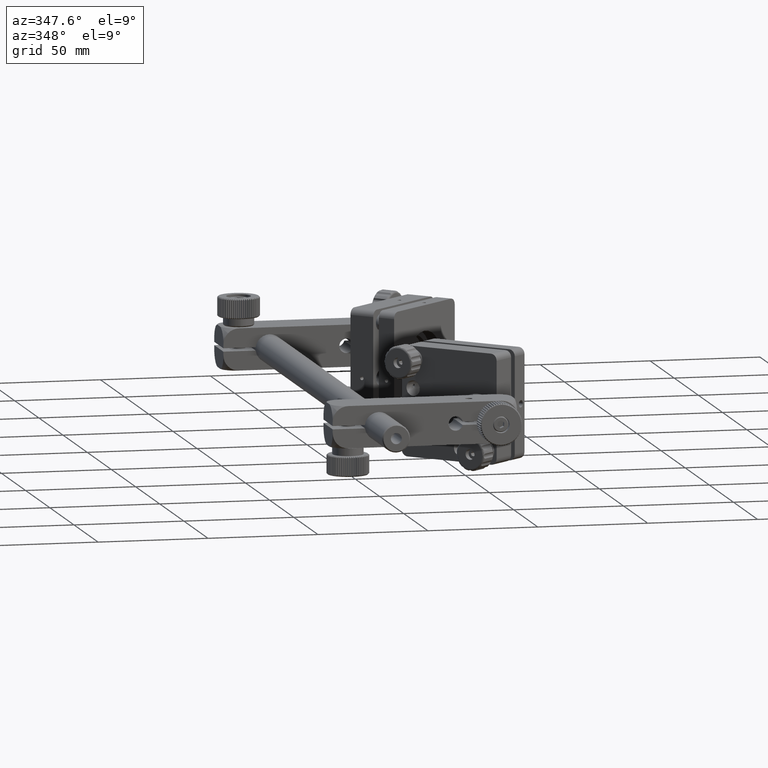
[diagram: clean part render]
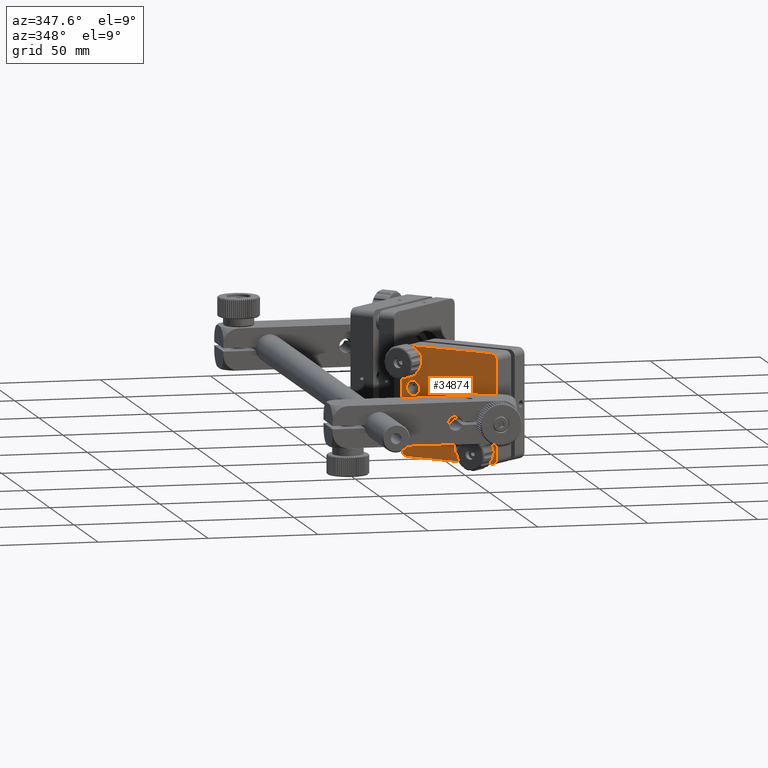
[diagram: same view with one face highlighted and labeled with its STEP entity id]
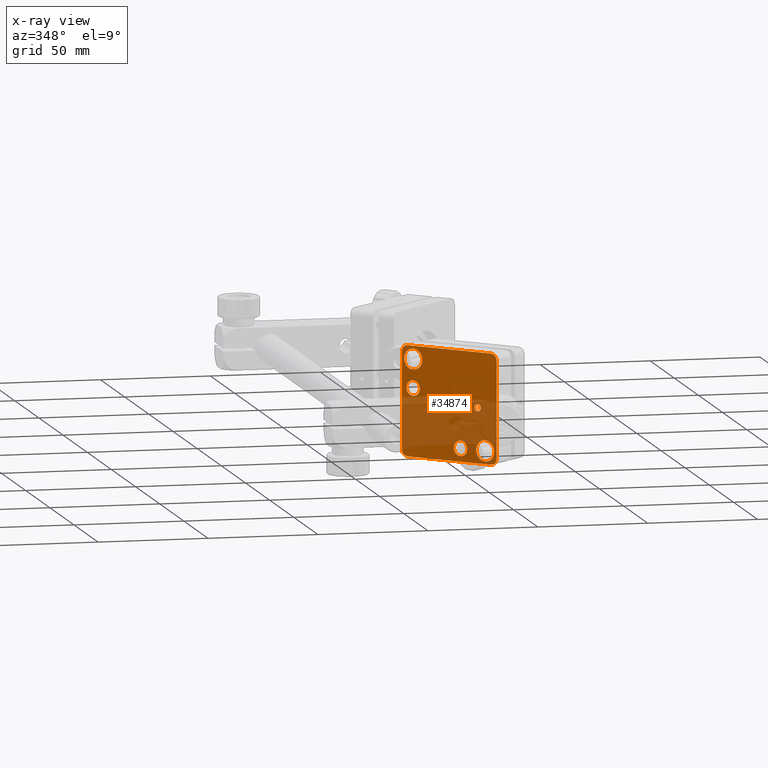
[diagram: x-ray of the same camera — body ghosted, the highlighted face saturated]
A machine part, auxiliary view. The second image highlights one B-rep face of the part: STEP entity #34874.
The next image is the same camera in x-ray: the body ghosted, the highlighted face saturated — about 44% of this face is hidden behind the body in this view.
In plain terms, the highlighted planar face has unit normal (0.7071, 0.7071, -0).
Its self-contained STEP definition (entity closure, byte-faithful):
#372 = VERTEX_POINT ( 'NONE', #57806 ) ;
#691 = VERTEX_POINT ( 'NONE', #31859 ) ;
#729 = CARTESIAN_POINT ( 'NONE',  ( 43.37591703623297690, 103.2506160743387653, 1.756373437918981856E-13 ) ) ;
#762 = EDGE_CURVE ( 'NONE', #51988, #5252, #11780, .T. ) ;
#1113 = DIRECTION ( 'NONE',  ( 0.000000000000000000, 0.000000000000000000, 1.000000000000000000 ) ) ;
#1262 = AXIS2_PLACEMENT_3D ( 'NONE', #11437, #36696, #2818 ) ;
#2506 = CARTESIAN_POINT ( 'NONE',  ( 27.81956785012891586, 118.8069652604426807, 25.00000000000015987 ) ) ;
#2816 = AXIS2_PLACEMENT_3D ( 'NONE', #5591, #10976, #44562 ) ;
#2818 = DIRECTION ( 'NONE',  ( 0.000000000000000000, 0.000000000000000000, 1.000000000000000000 ) ) ;
#2948 = EDGE_LOOP ( 'NONE', ( #48872, #61973 ) ) ;
#3379 = CIRCLE ( 'NONE', #48258, 3.499999999999999556 ) ;
#3577 = DIRECTION ( 'NONE',  ( 0.7071067811865445751, 0.7071067811865505703, 6.511551331494239254E-16 ) ) ;
#4462 = ORIENTED_EDGE ( 'NONE', *, *, #24935, .T. ) ;
#4800 = LINE ( 'NONE', #29394, #58939 ) ;
#4923 = EDGE_CURVE ( 'NONE', #51199, #13786, #41170, .T. ) ;
#5252 = VERTEX_POINT ( 'NONE', #16152 ) ;
#5591 = CARTESIAN_POINT ( 'NONE',  ( 58.93226622233719070, 87.69426688823480731, 22.00000000000018474 ) ) ;
#6485 = CARTESIAN_POINT ( 'NONE',  ( 53.98251875403126121, 92.64401435654050943, 1.876241934656472837E-13 ) ) ;
#6856 = FACE_BOUND ( 'NONE', #54916, .T. ) ;
#7096 = CARTESIAN_POINT ( 'NONE',  ( 29.94088819368845833, 116.6856449168830636, 6.000000000000161648 ) ) ;
#7137 = EDGE_CURVE ( 'NONE', #13786, #50115, #23476, .T. ) ;
#7200 = AXIS2_PLACEMENT_3D ( 'NONE', #729, #28874, #18969 ) ;
#7401 = DIRECTION ( 'NONE',  ( 0.7071067811865445751, 0.7071067811865505703, 6.511551331494239254E-16 ) ) ;
#7916 = CARTESIAN_POINT ( 'NONE',  ( 47.61855772335226789, 99.00797538721943170, -18.99999999999982236 ) ) ;
#9214 = CARTESIAN_POINT ( 'NONE',  ( 29.94088819368845833, 116.6856449168830636, 6.000000000000161648 ) ) ;
#9292 = DIRECTION ( 'NONE',  ( 7.304098846218133681E-16, 0.000000000000000000, 1.000000000000000000 ) ) ;
#9453 = EDGE_CURVE ( 'NONE', #40018, #54127, #62715, .T. ) ;
#9516 = CARTESIAN_POINT ( 'NONE',  ( 53.98251875403119016, 92.64401435654058048, -1.649999999999805178 ) ) ;
#10415 = VERTEX_POINT ( 'NONE', #56983 ) ;
#10585 = LINE ( 'NONE', #44482, #57535 ) ;
#10780 = DIRECTION ( 'NONE',  ( 0.7071067811865445751, 0.7071067811865505703, -5.218130153320595027E-16 ) ) ;
#10976 = DIRECTION ( 'NONE',  ( 0.7071067811865445751, 0.7071067811865505703, 6.511551331494239254E-16 ) ) ;
#11437 = CARTESIAN_POINT ( 'NONE',  ( 47.61855772335226789, 99.00797538721943170, -18.99999999999982236 ) ) ;
#11780 = CIRCLE ( 'NONE', #36315, 4.750000000000000888 ) ;
#11809 = EDGE_CURVE ( 'NONE', #14694, #61980, #59770, .T. ) ;
#11920 = AXIS2_PLACEMENT_3D ( 'NONE', #57611, #23724, #38140 ) ;
#12487 = DIRECTION ( 'NONE',  ( 0.7071067811865445751, 0.7071067811865505703, 6.511551331494239254E-16 ) ) ;
#12830 = ORIENTED_EDGE ( 'NONE', *, *, #26035, .F. ) ;
#13062 = EDGE_LOOP ( 'NONE', ( #51958, #4462 ) ) ;
#13562 = ORIENTED_EDGE ( 'NONE', *, *, #34810, .F. ) ;
#13641 = FACE_BOUND ( 'NONE', #13062, .T. ) ;
#13786 = VERTEX_POINT ( 'NONE', #14057 ) ;
#14018 = CIRCLE ( 'NONE', #21200, 2.999999999999999112 ) ;
#14057 = CARTESIAN_POINT ( 'NONE',  ( 25.69824750656920287, 120.9282856040023404, 22.00000000000015277 ) ) ;
#14373 = CARTESIAN_POINT ( 'NONE',  ( 53.98251875403119016, 92.64401435654058048, 1.650000000000180433 ) ) ;
#14382 = DIRECTION ( 'NONE',  ( 0.000000000000000000, 0.000000000000000000, 1.000000000000000000 ) ) ;
#14694 = VERTEX_POINT ( 'NONE', #14373 ) ;
#15602 = ORIENTED_EDGE ( 'NONE', *, *, #46555, .F. ) ;
#16152 = CARTESIAN_POINT ( 'NONE',  ( 29.94088819368845833, 116.6856449168830494, 23.75000000000017408 ) ) ;
#16316 = ORIENTED_EDGE ( 'NONE', *, *, #27221, .F. ) ;
#16377 = DIRECTION ( 'NONE',  ( 0.000000000000000000, 0.000000000000000000, 1.000000000000000000 ) ) ;
#16870 = ORIENTED_EDGE ( 'NONE', *, *, #53937, .T. ) ;
#17207 = VERTEX_POINT ( 'NONE', #19820 ) ;
#17277 = ORIENTED_EDGE ( 'NONE', *, *, #762, .T. ) ;
#17333 = DIRECTION ( 'NONE',  ( 9.912705577010326536E-16, 0.000000000000000000, 1.000000000000000000 ) ) ;
#17533 = CARTESIAN_POINT ( 'NONE',  ( 47.61855772335226789, 99.00797538721943170, -15.49999999999982236 ) ) ;
#17580 = CIRCLE ( 'NONE', #1262, 3.499999999999999556 ) ;
#17620 = CARTESIAN_POINT ( 'NONE',  ( 56.81094587877749547, 89.81558723179442438, -14.24999999999981171 ) ) ;
#17798 = EDGE_CURVE ( 'NONE', #40656, #10415, #26576, .T. ) ;
#18898 = DIRECTION ( 'NONE',  ( 0.7071067811865445751, 0.7071067811865505703, 6.511551331494239254E-16 ) ) ;
#18969 = DIRECTION ( 'NONE',  ( 0.000000000000000000, 0.000000000000000000, 1.000000000000000000 ) ) ;
#19658 = AXIS2_PLACEMENT_3D ( 'NONE', #6485, #55671, #16377 ) ;
#19820 = CARTESIAN_POINT ( 'NONE',  ( 43.37591703623297690, 103.2506160743387653, -2.749999999999824141 ) ) ;
#20286 = CARTESIAN_POINT ( 'NONE',  ( 27.81956785012882349, 118.8069652604426949, -21.99999999999985079 ) ) ;
#21200 = AXIS2_PLACEMENT_3D ( 'NONE', #20286, #55071, #1113 ) ;
#21228 = EDGE_CURVE ( 'NONE', #62844, #26614, #48936, .T. ) ;
#21279 = ORIENTED_EDGE ( 'NONE', *, *, #32422, .T. ) ;
#22130 = EDGE_LOOP ( 'NONE', ( #39791, #21279 ) ) ;
#23012 = AXIS2_PLACEMENT_3D ( 'NONE', #23054, #12487, #57570 ) ;
#23054 = CARTESIAN_POINT ( 'NONE',  ( 53.98251875403126121, 92.64401435654050943, 1.876241934656472837E-13 ) ) ;
#23064 = ORIENTED_EDGE ( 'NONE', *, *, #4923, .F. ) ;
#23237 = CIRCLE ( 'NONE', #2816, 2.999999999999999112 ) ;
#23476 = CIRCLE ( 'NONE', #43890, 2.999999999999999112 ) ;
#23724 = DIRECTION ( 'NONE',  ( 0.7071067811865445751, 0.7071067811865505703, 6.511551331494239254E-16 ) ) ;
#23967 = DIRECTION ( 'NONE',  ( 0.000000000000000000, 0.000000000000000000, -1.000000000000000000 ) ) ;
#24428 = ORIENTED_EDGE ( 'NONE', *, *, #40541, .T. ) ;
#24550 = FACE_BOUND ( 'NONE', #41654, .T. ) ;
#24631 = CARTESIAN_POINT ( 'NONE',  ( 27.81956785012891942, 118.8069652604426807, 22.00000000000016342 ) ) ;
#24935 = EDGE_CURVE ( 'NONE', #61980, #14694, #61499, .T. ) ;
#26035 = EDGE_CURVE ( 'NONE', #30741, #40656, #47358, .T. ) ;
#26576 = LINE ( 'NONE', #46047, #50495 ) ;
#26586 = DIRECTION ( 'NONE',  ( 0.7071067811865445751, 0.7071067811865505703, 6.511551331494239254E-16 ) ) ;
#26614 = VERTEX_POINT ( 'NONE', #17533 ) ;
#27028 = CIRCLE ( 'NONE', #35223, 4.750000000000007994 ) ;
#27221 = EDGE_CURVE ( 'NONE', #50115, #372, #10585, .T. ) ;
#27436 = DIRECTION ( 'NONE',  ( 0.7071067811865445751, 0.7071067811865505703, 6.511551331494239254E-16 ) ) ;
#27954 = AXIS2_PLACEMENT_3D ( 'NONE', #31373, #26586, #51786 ) ;
#28217 = ORIENTED_EDGE ( 'NONE', *, *, #7137, .F. ) ;
#28774 = CARTESIAN_POINT ( 'NONE',  ( 56.81094587877749547, 89.81558723179442438, -18.99999999999981881 ) ) ;
#28874 = DIRECTION ( 'NONE',  ( 0.7071067811865445751, 0.7071067811865505703, 6.511551331494239254E-16 ) ) ;
#29068 = DIRECTION ( 'NONE',  ( 0.7071067811865445751, 0.7071067811865505703, 6.511551331494239254E-16 ) ) ;
#29349 = FACE_BOUND ( 'NONE', #2948, .T. ) ;
#29365 = AXIS2_PLACEMENT_3D ( 'NONE', #54557, #10780, #59374 ) ;
#29394 = CARTESIAN_POINT ( 'NONE',  ( 61.05358656589672961, 85.57294654467511918, -21.99999999999979750 ) ) ;
#29430 = CARTESIAN_POINT ( 'NONE',  ( 56.81094587877749547, 89.81558723179442438, -23.74999999999982592 ) ) ;
#29532 = EDGE_CURVE ( 'NONE', #691, #17207, #49748, .T. ) ;
#30401 = CARTESIAN_POINT ( 'NONE',  ( 47.61855772335226789, 99.00797538721943170, -22.49999999999982236 ) ) ;
#30741 = VERTEX_POINT ( 'NONE', #60825 ) ;
#31373 = CARTESIAN_POINT ( 'NONE',  ( 58.93226622233714806, 87.69426688823475047, -21.99999999999981881 ) ) ;
#31859 = CARTESIAN_POINT ( 'NONE',  ( 43.37591703623297690, 103.2506160743387653, 2.750000000000175415 ) ) ;
#31869 = CARTESIAN_POINT ( 'NONE',  ( 25.69824750656914958, 120.9282856040023546, -21.99999999999981881 ) ) ;
#32422 = EDGE_CURVE ( 'NONE', #56516, #61556, #37701, .T. ) ;
#33169 = FACE_BOUND ( 'NONE', #22130, .T. ) ;
#33808 = VERTEX_POINT ( 'NONE', #59275 ) ;
#33885 = DIRECTION ( 'NONE',  ( -4.468234455873618704E-16, -2.911315977180368823E-16, -1.000000000000000000 ) ) ;
#34057 = CARTESIAN_POINT ( 'NONE',  ( 29.94088819368845833, 116.6856449168830636, 2.500000000000161648 ) ) ;
#34643 = EDGE_LOOP ( 'NONE', ( #12830, #13562, #15602, #16316, #28217, #23064, #60561, #59976 ) ) ;
#34810 = EDGE_CURVE ( 'NONE', #33808, #30741, #4800, .T. ) ;
#34874 = ADVANCED_FACE ( 'NONE', ( #13641, #33169, #24550, #39905, #6856, #29349, #50630 ), #39581, .F. ) ;
#35128 = AXIS2_PLACEMENT_3D ( 'NONE', #47956, #3577, #9292 ) ;
#35223 = AXIS2_PLACEMENT_3D ( 'NONE', #48259, #18898, #57870 ) ;
#36315 = AXIS2_PLACEMENT_3D ( 'NONE', #57401, #44534, #52266 ) ;
#36696 = DIRECTION ( 'NONE',  ( 0.7071067811865445751, 0.7071067811865505703, 6.511551331494239254E-16 ) ) ;
#37701 = CIRCLE ( 'NONE', #44796, 4.750000000000007994 ) ;
#37804 = ORIENTED_EDGE ( 'NONE', *, *, #21228, .T. ) ;
#38140 = DIRECTION ( 'NONE',  ( 0.000000000000000000, 0.000000000000000000, 1.000000000000000000 ) ) ;
#39581 = PLANE ( 'NONE',  #29365 ) ;
#39791 = ORIENTED_EDGE ( 'NONE', *, *, #61615, .T. ) ;
#39905 = FACE_BOUND ( 'NONE', #52932, .T. ) ;
#40018 = VERTEX_POINT ( 'NONE', #34057 ) ;
#40541 = EDGE_CURVE ( 'NONE', #26614, #62844, #17580, .T. ) ;
#40656 = VERTEX_POINT ( 'NONE', #43371 ) ;
#41170 = LINE ( 'NONE', #31869, #60512 ) ;
#41593 = DIRECTION ( 'NONE',  ( -0.7071067811865521247, 0.7071067811865430208, -6.204845674684348578E-16 ) ) ;
#41654 = EDGE_LOOP ( 'NONE', ( #16870, #17277 ) ) ;
#43371 = CARTESIAN_POINT ( 'NONE',  ( 58.93226622233716228, 87.69426688823473626, -24.99999999999981881 ) ) ;
#43890 = AXIS2_PLACEMENT_3D ( 'NONE', #24631, #58193, #14382 ) ;
#44482 = CARTESIAN_POINT ( 'NONE',  ( 58.93226622233711254, 87.69426688823480731, 25.00000000000018474 ) ) ;
#44534 = DIRECTION ( 'NONE',  ( 0.7071067811865445751, 0.7071067811865505703, 6.511551331494239254E-16 ) ) ;
#44562 = DIRECTION ( 'NONE',  ( 0.000000000000000000, 0.000000000000000000, -1.000000000000000000 ) ) ;
#44719 = CARTESIAN_POINT ( 'NONE',  ( 29.94088819368845833, 116.6856449168830636, 9.500000000000161648 ) ) ;
#44796 = AXIS2_PLACEMENT_3D ( 'NONE', #28774, #48231, #23967 ) ;
#45730 = ORIENTED_EDGE ( 'NONE', *, *, #50878, .T. ) ;
#46047 = CARTESIAN_POINT ( 'NONE',  ( 58.93226622233716228, 87.69426688823473626, -24.99999999999981881 ) ) ;
#46302 = CIRCLE ( 'NONE', #35128, 4.750000000000000888 ) ;
#46480 = EDGE_CURVE ( 'NONE', #10415, #51199, #14018, .T. ) ;
#46555 = EDGE_CURVE ( 'NONE', #372, #33808, #23237, .T. ) ;
#46904 = DIRECTION ( 'NONE',  ( 0.000000000000000000, 0.000000000000000000, 1.000000000000000000 ) ) ;
#47358 = CIRCLE ( 'NONE', #27954, 2.999999999999999112 ) ;
#47917 = AXIS2_PLACEMENT_3D ( 'NONE', #7916, #27436, #46904 ) ;
#47932 = CARTESIAN_POINT ( 'NONE',  ( 25.69824750656914958, 120.9282856040023546, -21.99999999999981881 ) ) ;
#47956 = CARTESIAN_POINT ( 'NONE',  ( 29.94088819368845833, 116.6856449168830494, 19.00000000000017408 ) ) ;
#48231 = DIRECTION ( 'NONE',  ( 0.7071067811865445751, 0.7071067811865505703, 6.511551331494239254E-16 ) ) ;
#48258 = AXIS2_PLACEMENT_3D ( 'NONE', #7096, #7401, #17333 ) ;
#48259 = CARTESIAN_POINT ( 'NONE',  ( 56.81094587877749547, 89.81558723179442438, -18.99999999999981881 ) ) ;
#48872 = ORIENTED_EDGE ( 'NONE', *, *, #60200, .T. ) ;
#48936 = CIRCLE ( 'NONE', #47917, 3.499999999999999556 ) ;
#49603 = AXIS2_PLACEMENT_3D ( 'NONE', #9214, #29068, #57490 ) ;
#49748 = CIRCLE ( 'NONE', #11920, 2.750000000000000000 ) ;
#49895 = ORIENTED_EDGE ( 'NONE', *, *, #29532, .T. ) ;
#50115 = VERTEX_POINT ( 'NONE', #2506 ) ;
#50495 = VECTOR ( 'NONE', #41593, 1000.000000000000000 ) ;
#50630 = FACE_OUTER_BOUND ( 'NONE', #34643, .T. ) ;
#50878 = EDGE_CURVE ( 'NONE', #17207, #691, #55156, .T. ) ;
#51199 = VERTEX_POINT ( 'NONE', #47932 ) ;
#51786 = DIRECTION ( 'NONE',  ( 0.000000000000000000, 0.000000000000000000, 1.000000000000000000 ) ) ;
#51958 = ORIENTED_EDGE ( 'NONE', *, *, #11809, .T. ) ;
#51988 = VERTEX_POINT ( 'NONE', #62166 ) ;
#52266 = DIRECTION ( 'NONE',  ( 7.304098846218133681E-16, 0.000000000000000000, 1.000000000000000000 ) ) ;
#52932 = EDGE_LOOP ( 'NONE', ( #49895, #45730 ) ) ;
#53937 = EDGE_CURVE ( 'NONE', #5252, #51988, #46302, .T. ) ;
#54127 = VERTEX_POINT ( 'NONE', #44719 ) ;
#54557 = CARTESIAN_POINT ( 'NONE',  ( 58.93226622233714806, 87.69426688823475047, -21.99999999999981881 ) ) ;
#54916 = EDGE_LOOP ( 'NONE', ( #24428, #37804 ) ) ;
#55071 = DIRECTION ( 'NONE',  ( 0.7071067811865445751, 0.7071067811865505703, 6.511551331494239254E-16 ) ) ;
#55156 = CIRCLE ( 'NONE', #7200, 2.750000000000000000 ) ;
#55310 = DIRECTION ( 'NONE',  ( 0.7071067811865521247, -0.7071067811865430208, 4.627824332887248799E-16 ) ) ;
#55671 = DIRECTION ( 'NONE',  ( 0.7071067811865445751, 0.7071067811865505703, 6.511551331494239254E-16 ) ) ;
#56516 = VERTEX_POINT ( 'NONE', #29430 ) ;
#56983 = CARTESIAN_POINT ( 'NONE',  ( 27.81956785012882349, 118.8069652604426665, -24.99999999999984723 ) ) ;
#57401 = CARTESIAN_POINT ( 'NONE',  ( 29.94088819368845833, 116.6856449168830494, 19.00000000000017408 ) ) ;
#57490 = DIRECTION ( 'NONE',  ( 9.912705577010326536E-16, 0.000000000000000000, 1.000000000000000000 ) ) ;
#57535 = VECTOR ( 'NONE', #55310, 1000.000000000000000 ) ;
#57570 = DIRECTION ( 'NONE',  ( 0.000000000000000000, 0.000000000000000000, 1.000000000000000000 ) ) ;
#57611 = CARTESIAN_POINT ( 'NONE',  ( 43.37591703623297690, 103.2506160743387653, 1.756373437918981856E-13 ) ) ;
#57806 = CARTESIAN_POINT ( 'NONE',  ( 58.93226622233711254, 87.69426688823480731, 25.00000000000018474 ) ) ;
#57870 = DIRECTION ( 'NONE',  ( 0.000000000000000000, 0.000000000000000000, -1.000000000000000000 ) ) ;
#58193 = DIRECTION ( 'NONE',  ( 0.7071067811865445751, 0.7071067811865505703, 6.511551331494239254E-16 ) ) ;
#58939 = VECTOR ( 'NONE', #33885, 1000.000000000000000 ) ;
#59275 = CARTESIAN_POINT ( 'NONE',  ( 61.05358656589672250, 85.57294654467514761, 22.00000000000016698 ) ) ;
#59374 = DIRECTION ( 'NONE',  ( 5.025795698303939710E-16, 2.353754734750054227E-16, 1.000000000000000000 ) ) ;
#59770 = CIRCLE ( 'NONE', #23012, 1.649999999999997469 ) ;
#59976 = ORIENTED_EDGE ( 'NONE', *, *, #17798, .F. ) ;
#60200 = EDGE_CURVE ( 'NONE', #54127, #40018, #3379, .T. ) ;
#60512 = VECTOR ( 'NONE', #61265, 1000.000000000000000 ) ;
#60561 = ORIENTED_EDGE ( 'NONE', *, *, #46480, .F. ) ;
#60825 = CARTESIAN_POINT ( 'NONE',  ( 61.05358656589672961, 85.57294654467511918, -21.99999999999979750 ) ) ;
#61265 = DIRECTION ( 'NONE',  ( 5.583356940734261702E-16, 1.796193492319740616E-16, 1.000000000000000000 ) ) ;
#61499 = CIRCLE ( 'NONE', #19658, 1.649999999999997469 ) ;
#61556 = VERTEX_POINT ( 'NONE', #17620 ) ;
#61615 = EDGE_CURVE ( 'NONE', #61556, #56516, #27028, .T. ) ;
#61973 = ORIENTED_EDGE ( 'NONE', *, *, #9453, .T. ) ;
#61980 = VERTEX_POINT ( 'NONE', #9516 ) ;
#62166 = CARTESIAN_POINT ( 'NONE',  ( 29.94088819368845833, 116.6856449168830494, 14.25000000000017231 ) ) ;
#62715 = CIRCLE ( 'NONE', #49603, 3.499999999999999556 ) ;
#62844 = VERTEX_POINT ( 'NONE', #30401 ) ;